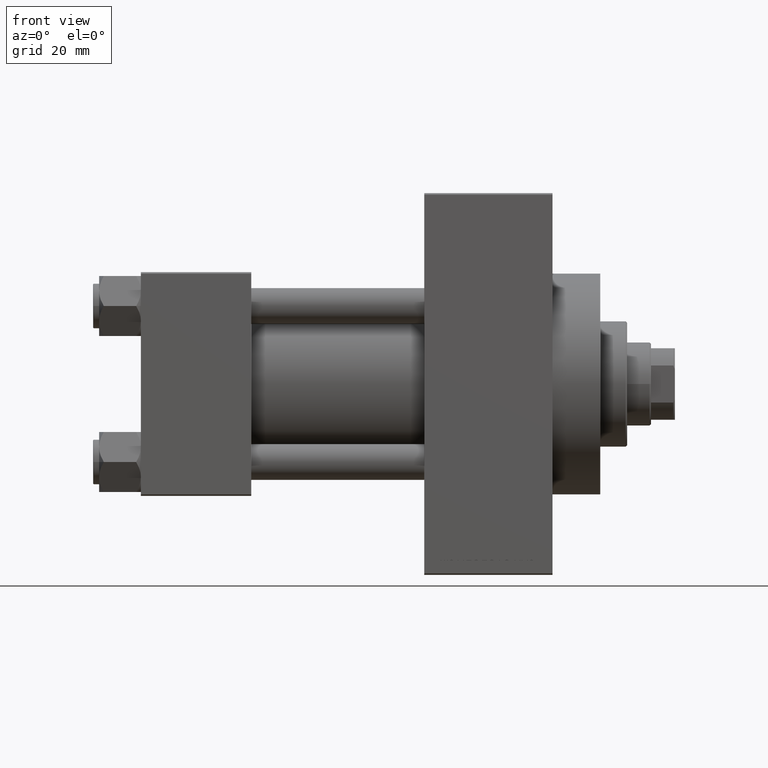
[diagram: clean part render]
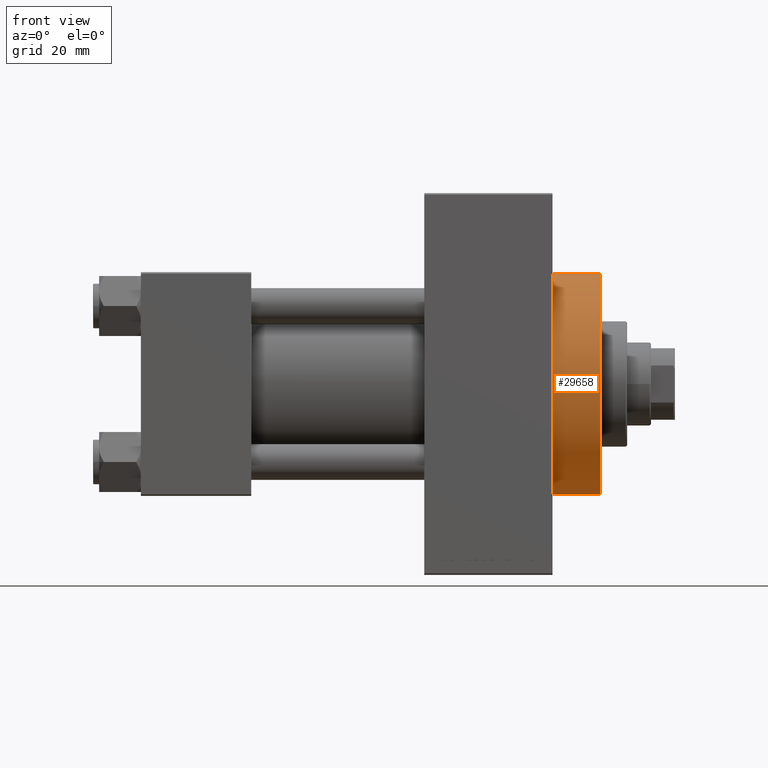
[diagram: same view with one face highlighted and labeled with its STEP entity id]
A machine part, front view. The second image highlights one B-rep face of the part: STEP entity #29658.
In plain terms, the highlighted cylindrical surface (partial cylindrical patch) has radius 37 mm, axis along (-1, -0, -0).
Its self-contained STEP definition (entity closure, byte-faithful):
#2766 = AXIS2_PLACEMENT_3D ( 'NONE', #3887, #14881, #44005 ) ;
#3446 = VERTEX_POINT ( 'NONE', #6794 ) ;
#3887 = CARTESIAN_POINT ( 'NONE',  ( 138.0000000000000000, 0.000000000000000000, 0.000000000000000000 ) ) ;
#6794 = CARTESIAN_POINT ( 'NONE',  ( 138.0000000000000000, 4.531193156845206793E-15, -37.00000000000000000 ) ) ;
#8172 = CARTESIAN_POINT ( 'NONE',  ( 138.0000000000000000, 0.000000000000000000, 37.00000000000000000 ) ) ;
#8299 = FACE_OUTER_BOUND ( 'NONE', #26463, .T. ) ;
#8329 = DIRECTION ( 'NONE',  ( 1.000000000000000000, 0.000000000000000000, 0.000000000000000000 ) ) ;
#8741 = CARTESIAN_POINT ( 'NONE',  ( 154.0000000000000284, 0.000000000000000000, 37.00000000000000000 ) ) ;
#9591 = CIRCLE ( 'NONE', #40829, 37.00000000000000000 ) ;
#12261 = ORIENTED_EDGE ( 'NONE', *, *, #43361, .F. ) ;
#14881 = DIRECTION ( 'NONE',  ( 1.000000000000000000, 0.000000000000000000, 0.000000000000000000 ) ) ;
#15131 = VERTEX_POINT ( 'NONE', #26411 ) ;
#18274 = ORIENTED_EDGE ( 'NONE', *, *, #37300, .F. ) ;
#19054 = DIRECTION ( 'NONE',  ( -1.000000000000000000, -0.000000000000000000, -0.000000000000000000 ) ) ;
#22244 = AXIS2_PLACEMENT_3D ( 'NONE', #40306, #19054, #37430 ) ;
#23369 = CIRCLE ( 'NONE', #2766, 37.00000000000000000 ) ;
#25562 = VERTEX_POINT ( 'NONE', #8172 ) ;
#26220 = CYLINDRICAL_SURFACE ( 'NONE', #22244, 37.00000000000000000 ) ;
#26411 = CARTESIAN_POINT ( 'NONE',  ( 154.0000000000000284, 0.000000000000000000, 37.00000000000000000 ) ) ;
#26463 = EDGE_LOOP ( 'NONE', ( #18274, #12261, #36642, #36602 ) ) ;
#26666 = LINE ( 'NONE', #8741, #32983 ) ;
#27962 = CARTESIAN_POINT ( 'NONE',  ( 154.0000000000000284, 4.531193156845206793E-15, -37.00000000000000000 ) ) ;
#29658 = ADVANCED_FACE ( 'NONE', ( #8299 ), #26220, .T. ) ;
#32170 = EDGE_CURVE ( 'NONE', #15131, #25562, #26666, .T. ) ;
#32983 = VECTOR ( 'NONE', #40972, 1000.000000000000000 ) ;
#33656 = DIRECTION ( 'NONE',  ( 0.000000000000000000, 0.000000000000000000, -1.000000000000000000 ) ) ;
#35716 = LINE ( 'NONE', #47173, #39883 ) ;
#36602 = ORIENTED_EDGE ( 'NONE', *, *, #45697, .T. ) ;
#36642 = ORIENTED_EDGE ( 'NONE', *, *, #32170, .T. ) ;
#37300 = EDGE_CURVE ( 'NONE', #41415, #3446, #35716, .T. ) ;
#37430 = DIRECTION ( 'NONE',  ( 0.000000000000000000, 0.000000000000000000, 1.000000000000000000 ) ) ;
#39883 = VECTOR ( 'NONE', #43580, 1000.000000000000000 ) ;
#40306 = CARTESIAN_POINT ( 'NONE',  ( 154.0000000000000284, 0.000000000000000000, 0.000000000000000000 ) ) ;
#40829 = AXIS2_PLACEMENT_3D ( 'NONE', #41275, #8329, #33656 ) ;
#40972 = DIRECTION ( 'NONE',  ( -1.000000000000000000, -0.000000000000000000, -0.000000000000000000 ) ) ;
#41275 = CARTESIAN_POINT ( 'NONE',  ( 154.0000000000000284, 0.000000000000000000, 0.000000000000000000 ) ) ;
#41415 = VERTEX_POINT ( 'NONE', #27962 ) ;
#43361 = EDGE_CURVE ( 'NONE', #15131, #41415, #9591, .T. ) ;
#43580 = DIRECTION ( 'NONE',  ( -1.000000000000000000, -0.000000000000000000, -0.000000000000000000 ) ) ;
#44005 = DIRECTION ( 'NONE',  ( 0.000000000000000000, 0.000000000000000000, -1.000000000000000000 ) ) ;
#45697 = EDGE_CURVE ( 'NONE', #25562, #3446, #23369, .T. ) ;
#47173 = CARTESIAN_POINT ( 'NONE',  ( 154.0000000000000284, 4.531193156845206793E-15, -37.00000000000000000 ) ) ;